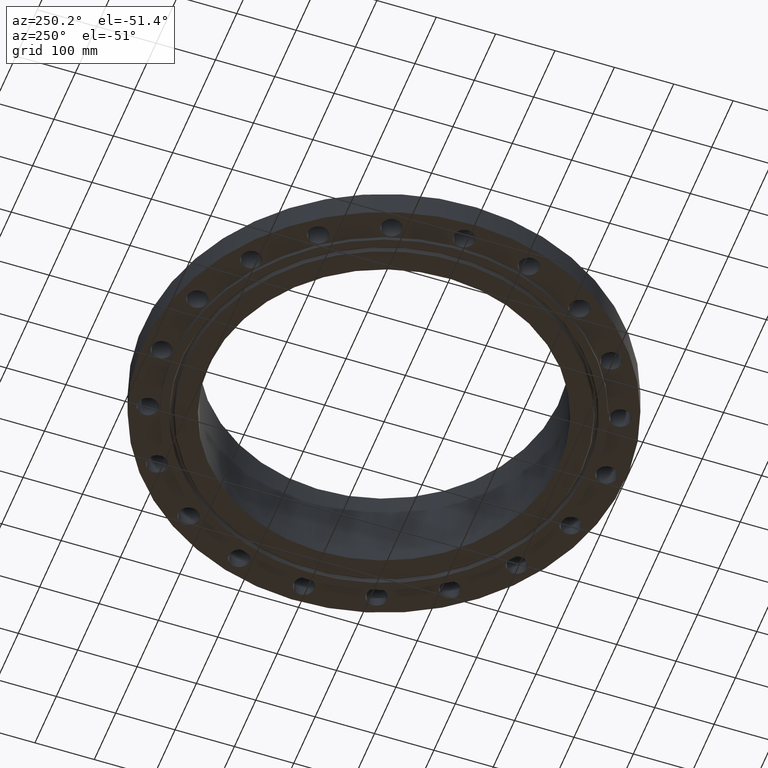
[diagram: clean part render]
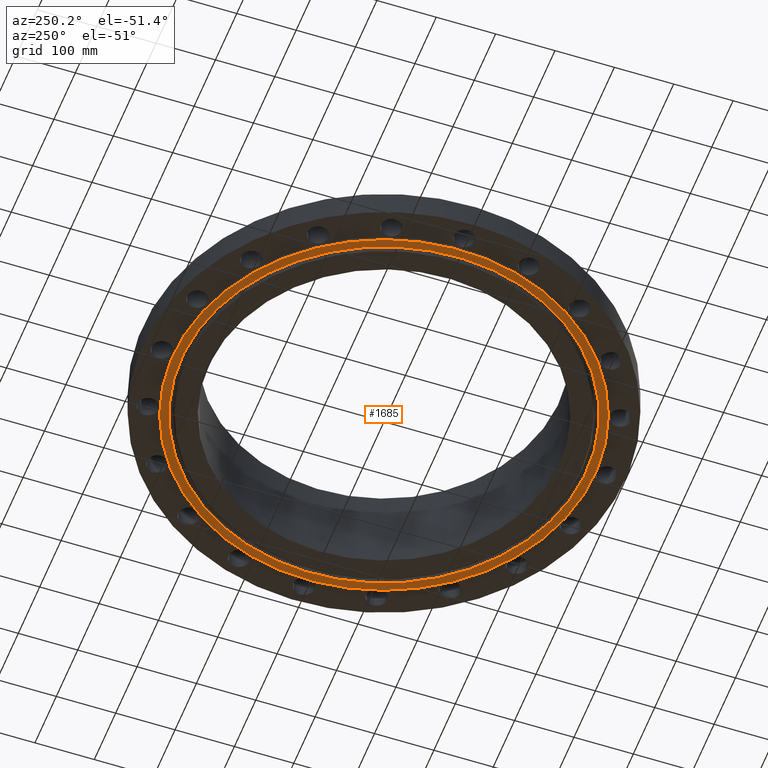
[diagram: same view with one face highlighted and labeled with its STEP entity id]
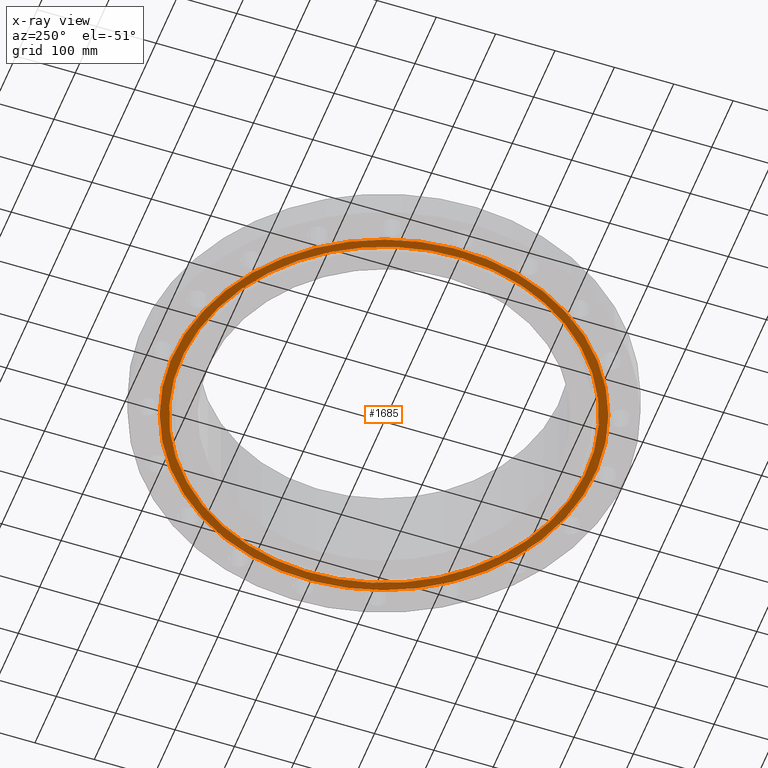
[diagram: x-ray of the same camera — body ghosted, the highlighted face saturated]
A machine part, auxiliary view. The second image highlights one B-rep face of the part: STEP entity #1685.
The next image is the same camera in x-ray: the body ghosted, the highlighted face saturated — about 0% of this face is hidden behind the body in this view.
In plain terms, the highlighted planar face has unit normal (0, 0, -1).
Its self-contained STEP definition (entity closure, byte-faithful):
#431=AXIS2_PLACEMENT_3D('Circle Axis2P3D',#429,#430,$) ;
#466=AXIS2_PLACEMENT_3D('Circle Axis2P3D',#464,#465,$) ;
#1661=AXIS2_PLACEMENT_3D('Plane Axis2P3D',#1658,#1659,#1660) ;
#1669=AXIS2_PLACEMENT_3D('Circle Axis2P3D',#1667,#1668,$) ;
#1678=AXIS2_PLACEMENT_3D('Circle Axis2P3D',#1676,#1677,$) ;
#429=CARTESIAN_POINT('Axis2P3D Location',(0.,0.,-0.250000000001)) ;
#433=CARTESIAN_POINT('Vertex',(-6.71195754049,-12.2861558665,-0.250000000001)) ;
#435=CARTESIAN_POINT('Vertex',(6.71195754049,12.2861558665,-0.250000000001)) ;
#464=CARTESIAN_POINT('Axis2P3D Location',(0.,0.,-0.250000000001)) ;
#1658=CARTESIAN_POINT('Axis2P3D Location',(0.,11.625,-0.250000000001)) ;
#1667=CARTESIAN_POINT('Axis2P3D Location',(2.23792987641E-015,-2.23792987641E-015,-0.250000000001)) ;
#1671=CARTESIAN_POINT('Vertex',(6.43478965098,-11.7788034479,-0.250000000001)) ;
#1673=CARTESIAN_POINT('Vertex',(-6.43478965098,11.7788034479,-0.250000000001)) ;
#1676=CARTESIAN_POINT('Axis2P3D Location',(0.,0.,-0.250000000001)) ;
#430=DIRECTION('Axis2P3D Direction',(0.,0.,-0.0393700787402)) ;
#465=DIRECTION('Axis2P3D Direction',(0.,0.,-0.0393700787402)) ;
#1659=DIRECTION('Axis2P3D Direction',(0.,0.,-0.0393700787402)) ;
#1660=DIRECTION('Axis2P3D XDirection',(0.0393700787402,0.,0.)) ;
#1668=DIRECTION('Axis2P3D Direction',(0.,0.,-0.0393700787402)) ;
#1677=DIRECTION('Axis2P3D Direction',(0.,0.,-0.0393700787402)) ;
#1664=ORIENTED_EDGE('',*,*,#437,.T.) ;
#1665=ORIENTED_EDGE('',*,*,#468,.T.) ;
#1682=ORIENTED_EDGE('',*,*,#1675,.F.) ;
#1683=ORIENTED_EDGE('',*,*,#1680,.F.) ;
#1684=FACE_BOUND('',#1681,.T.) ;
#1685=ADVANCED_FACE('PartBody',(#1666,#1684),#1662,.T.) ;
#432=CIRCLE('generated circle',#431,14.0000000001) ;
#467=CIRCLE('generated circle',#466,14.0000000001) ;
#1670=CIRCLE('generated circle',#1669,13.4218750001) ;
#1679=CIRCLE('generated circle',#1678,13.4218750001) ;
#437=EDGE_CURVE('',#434,#436,#432,.T.) ;
#468=EDGE_CURVE('',#436,#434,#467,.T.) ;
#1675=EDGE_CURVE('',#1672,#1674,#1670,.T.) ;
#1680=EDGE_CURVE('',#1674,#1672,#1679,.T.) ;
#1663=EDGE_LOOP('',(#1664,#1665)) ;
#1681=EDGE_LOOP('',(#1682,#1683)) ;
#1666=FACE_OUTER_BOUND('',#1663,.T.) ;
#1662=PLANE('',#1661) ;
#434=VERTEX_POINT('',#433) ;
#436=VERTEX_POINT('',#435) ;
#1672=VERTEX_POINT('',#1671) ;
#1674=VERTEX_POINT('',#1673) ;